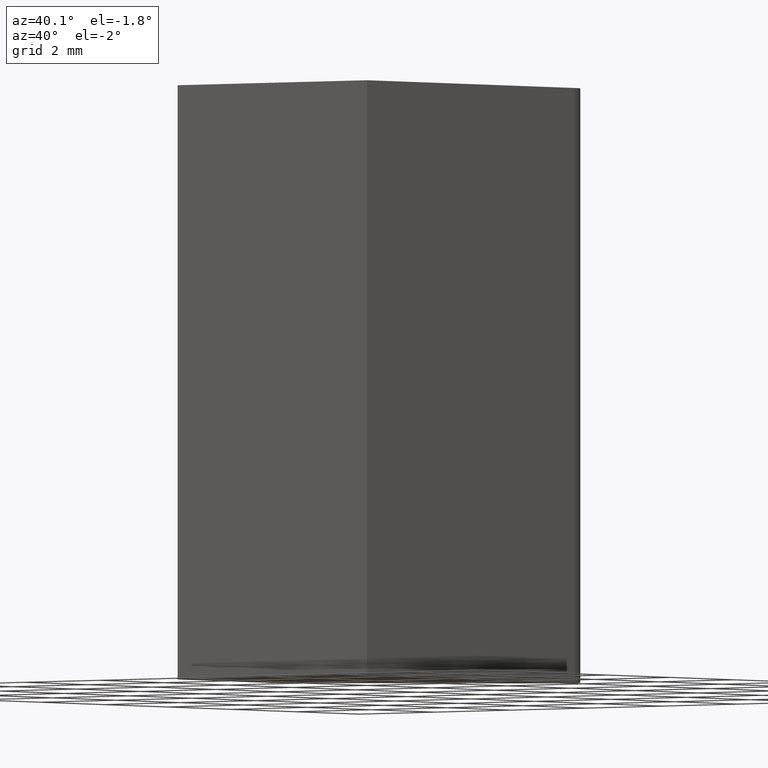
[diagram: clean part render]
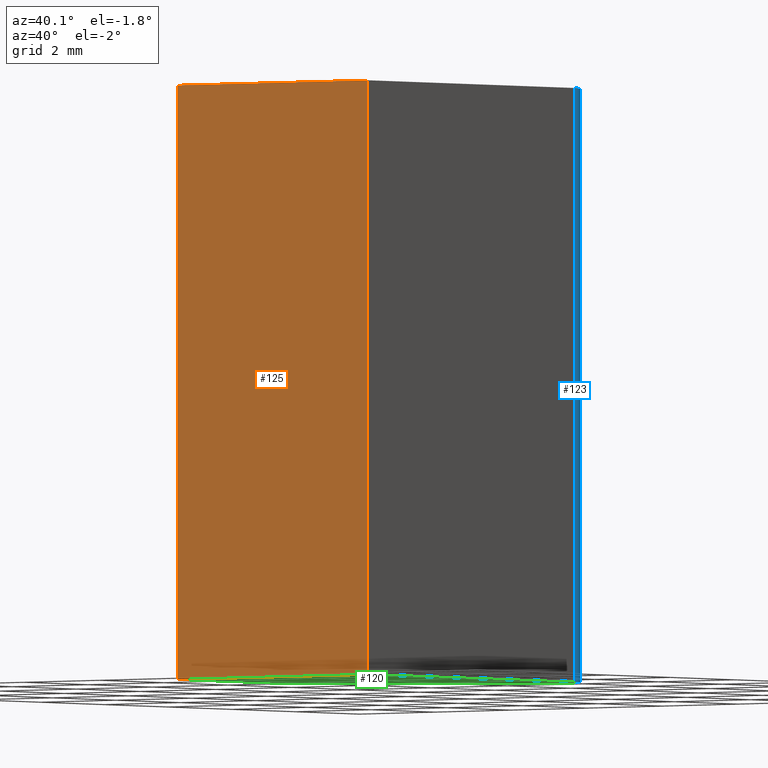
[diagram: same view with three faces highlighted in distinct colors, each labeled with its STEP entity id]
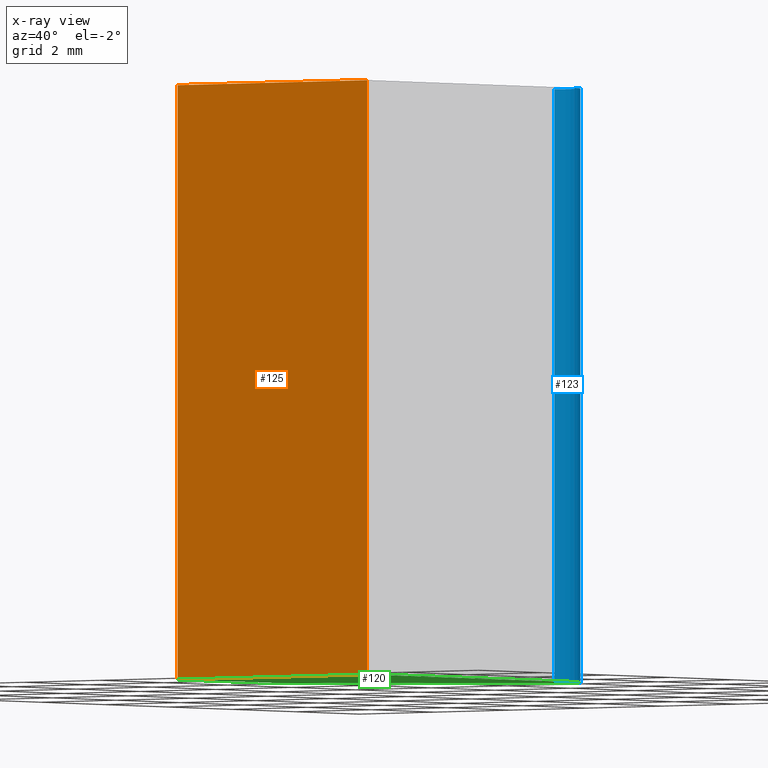
[diagram: x-ray of the same camera — body ghosted, the three highlighted faces saturated]
A machine part, auxiliary view with three faces highlighted in distinct colors.
The next image is the same camera in x-ray (body ghosted, the three faces saturated) — at least one of them is partly hidden behind the body in this view.
Their STEP definitions:

[orange] entity #125 — the highlighted planar face has unit normal (0, -1, 0).
#22=FACE_OUTER_BOUND('',#29,.T.);
#29=EDGE_LOOP('',(#105,#106,#107,#108));
#34=LINE('',#198,#47);
#39=LINE('',#209,#52);
#44=LINE('',#221,#57);
#45=LINE('',#223,#58);
#47=VECTOR('',#164,10.);
#52=VECTOR('',#173,10.);
#57=VECTOR('',#186,10.);
#58=VECTOR('',#189,10.);
#59=VERTEX_POINT('',#194);
#61=VERTEX_POINT('',#197);
#64=VERTEX_POINT('',#205);
#68=VERTEX_POINT('',#219);
#70=EDGE_CURVE('',#61,#59,#34,.T.);
#76=EDGE_CURVE('',#64,#61,#39,.T.);
#82=EDGE_CURVE('',#59,#68,#44,.T.);
#83=EDGE_CURVE('',#68,#64,#45,.T.);
#105=ORIENTED_EDGE('',*,*,#83,.T.);
#106=ORIENTED_EDGE('',*,*,#76,.T.);
#107=ORIENTED_EDGE('',*,*,#70,.T.);
#108=ORIENTED_EDGE('',*,*,#82,.T.);
#118=PLANE('',#157);
#125=ADVANCED_FACE('',(#22),#118,.T.);
#157=AXIS2_PLACEMENT_3D('',#222,#187,#188);
#164=DIRECTION('',(1.,2.11954672609056E-16,0.));
#173=DIRECTION('',(0.,0.,-1.));
#186=DIRECTION('',(0.,0.,1.));
#187=DIRECTION('center_axis',(2.11954672609056E-16,-1.,0.));
#188=DIRECTION('ref_axis',(0.,0.,-1.));
#189=DIRECTION('',(-1.,-2.11954672609056E-16,0.));
#194=CARTESIAN_POINT('',(4.44089209850063E-15,2.22044604925031E-15,-6.));
#197=CARTESIAN_POINT('',(-5.,1.16067268620503E-15,-6.));
#198=CARTESIAN_POINT('',(4.44089209850063E-15,2.22044604925031E-15,-6.));
#205=CARTESIAN_POINT('',(-5.,1.16067268620503E-15,6.));
#209=CARTESIAN_POINT('',(-5.,1.16067268620503E-15,0.));
#219=CARTESIAN_POINT('',(4.44089209850063E-15,2.22044604925031E-15,6.));
#221=CARTESIAN_POINT('',(4.44089209850063E-15,2.22044604925031E-15,0.));
#222=CARTESIAN_POINT('Origin',(4.44089209850063E-15,2.22044604925031E-15,
0.));
#223=CARTESIAN_POINT('',(4.44089209850063E-15,2.22044604925031E-15,6.));

[blue] entity #123 — the highlighted cylindrical surface (edge-blend (fillet) strip) has radius 0.5 mm, axis along (0, 0, 1).
#16=CYLINDRICAL_SURFACE('',#154,0.5);
#20=FACE_OUTER_BOUND('',#27,.T.);
#27=EDGE_LOOP('',(#97,#98,#99,#100));
#31=CIRCLE('',#151,0.5);
#32=CIRCLE('',#155,0.5);
#41=LINE('',#213,#54);
#42=LINE('',#217,#55);
#54=VECTOR('',#177,10.);
#55=VECTOR('',#182,10.);
#60=VERTEX_POINT('',#195);
#63=VERTEX_POINT('',#201);
#66=VERTEX_POINT('',#211);
#67=VERTEX_POINT('',#215);
#73=EDGE_CURVE('',#60,#63,#31,.T.);
#78=EDGE_CURVE('',#66,#63,#41,.T.);
#79=EDGE_CURVE('',#66,#67,#32,.T.);
#80=EDGE_CURVE('',#67,#60,#42,.T.);
#97=ORIENTED_EDGE('',*,*,#79,.T.);
#98=ORIENTED_EDGE('',*,*,#80,.T.);
#99=ORIENTED_EDGE('',*,*,#73,.T.);
#100=ORIENTED_EDGE('',*,*,#78,.F.);
#123=ADVANCED_FACE('',(#20),#16,.T.);
#151=AXIS2_PLACEMENT_3D('',#203,#167,#168);
#154=AXIS2_PLACEMENT_3D('',#214,#178,#179);
#155=AXIS2_PLACEMENT_3D('',#216,#180,#181);
#167=DIRECTION('center_axis',(0.,0.,1.));
#168=DIRECTION('ref_axis',(-1.,0.,0.));
#177=DIRECTION('',(0.,0.,-1.));
#178=DIRECTION('center_axis',(0.,0.,1.));
#179=DIRECTION('ref_axis',(-1.,0.,0.));
#180=DIRECTION('center_axis',(0.,0.,-1.));
#181=DIRECTION('ref_axis',(-1.,0.,0.));
#182=DIRECTION('',(0.,0.,-1.));
#195=CARTESIAN_POINT('',(2.0122792321331E-15,6.5,-6.));
#201=CARTESIAN_POINT('',(-0.840402757081551,6.86623211624771,-6.));
#203=CARTESIAN_POINT('Origin',(-0.499999999999998,6.5,-6.));
#211=CARTESIAN_POINT('',(-0.840402757081551,6.86623211624771,6.));
#213=CARTESIAN_POINT('',(-0.840402757081551,6.86623211624771,0.));
#214=CARTESIAN_POINT('Origin',(-0.499999999999998,6.5,0.));
#215=CARTESIAN_POINT('',(2.0122792321331E-15,6.5,6.));
#216=CARTESIAN_POINT('Origin',(-0.499999999999998,6.5,6.));
#217=CARTESIAN_POINT('',(2.0122792321331E-15,6.5,0.));

[green] entity #120 — the highlighted planar face has unit normal (0, 0, 1).
#17=FACE_OUTER_BOUND('',#24,.T.);
#24=EDGE_LOOP('',(#84,#85,#86,#87,#88));
#31=CIRCLE('',#151,0.5);
#33=LINE('',#196,#46);
#34=LINE('',#198,#47);
#35=LINE('',#200,#48);
#36=LINE('',#202,#49);
#46=VECTOR('',#163,10.);
#47=VECTOR('',#164,10.);
#48=VECTOR('',#165,10.);
#49=VECTOR('',#166,10.);
#59=VERTEX_POINT('',#194);
#60=VERTEX_POINT('',#195);
#61=VERTEX_POINT('',#197);
#62=VERTEX_POINT('',#199);
#63=VERTEX_POINT('',#201);
#69=EDGE_CURVE('',#59,#60,#33,.T.);
#70=EDGE_CURVE('',#61,#59,#34,.T.);
#71=EDGE_CURVE('',#62,#61,#35,.T.);
#72=EDGE_CURVE('',#63,#62,#36,.T.);
#73=EDGE_CURVE('',#60,#63,#31,.T.);
#84=ORIENTED_EDGE('',*,*,#69,.F.);
#85=ORIENTED_EDGE('',*,*,#70,.F.);
#86=ORIENTED_EDGE('',*,*,#71,.F.);
#87=ORIENTED_EDGE('',*,*,#72,.F.);
#88=ORIENTED_EDGE('',*,*,#73,.F.);
#114=PLANE('',#150);
#120=ADVANCED_FACE('',(#17),#114,.F.);
#150=AXIS2_PLACEMENT_3D('',#193,#161,#162);
#151=AXIS2_PLACEMENT_3D('',#203,#167,#168);
#161=DIRECTION('center_axis',(0.,0.,1.));
#162=DIRECTION('ref_axis',(1.,0.,0.));
#163=DIRECTION('',(-3.73632748671928E-16,1.,0.));
#164=DIRECTION('',(1.,2.11954672609056E-16,0.));
#165=DIRECTION('',(-1.85037170770859E-16,-1.,0.));
#166=DIRECTION('',(-0.732464232495423,-0.680805514163106,0.));
#167=DIRECTION('center_axis',(0.,0.,1.));
#168=DIRECTION('ref_axis',(-1.,0.,0.));
#193=CARTESIAN_POINT('Origin',(-2.08490941817522,2.88574699083849,-6.));
#194=CARTESIAN_POINT('',(4.44089209850063E-15,2.22044604925031E-15,-6.));
#195=CARTESIAN_POINT('',(2.0122792321331E-15,6.5,-6.));
#196=CARTESIAN_POINT('',(2.0122792321331E-15,6.5,-6.));
#197=CARTESIAN_POINT('',(-5.,1.16067268620503E-15,-6.));
#198=CARTESIAN_POINT('',(4.44089209850063E-15,2.22044604925031E-15,-6.));
#199=CARTESIAN_POINT('',(-5.,3.,-6.));
#200=CARTESIAN_POINT('',(-5.,1.16067268620503E-15,-6.));
#201=CARTESIAN_POINT('',(-0.840402757081551,6.86623211624771,-6.));
#202=CARTESIAN_POINT('',(-5.,3.,-6.));
#203=CARTESIAN_POINT('Origin',(-0.499999999999998,6.5,-6.));